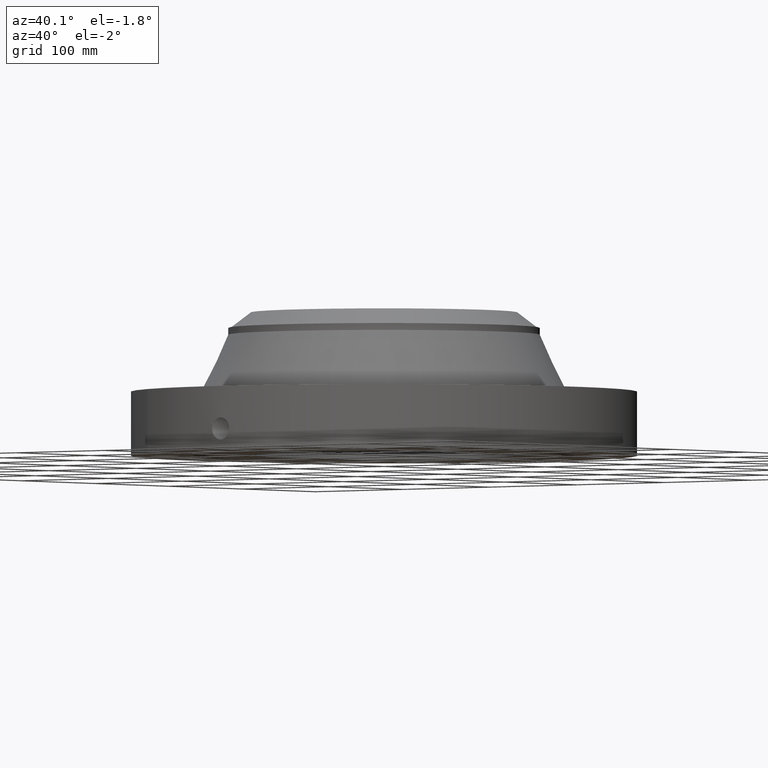
[diagram: clean part render]
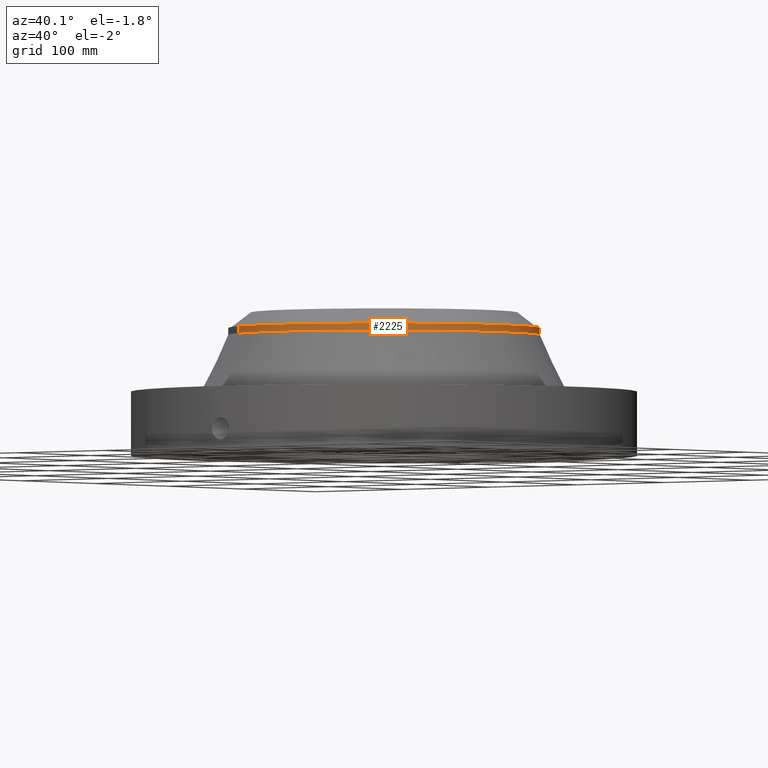
[diagram: same view with one face highlighted and labeled with its STEP entity id]
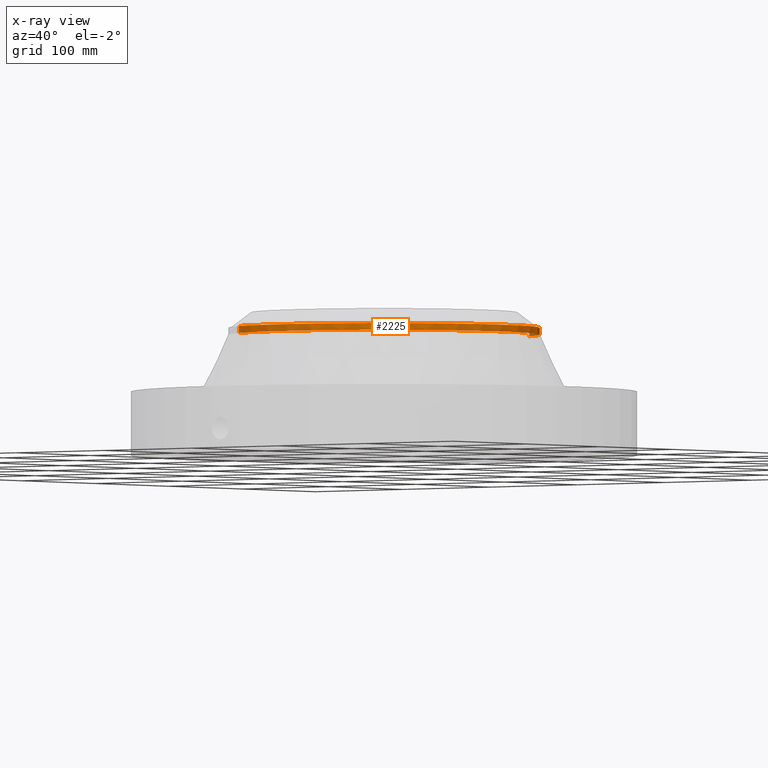
[diagram: x-ray of the same camera — body ghosted, the highlighted face saturated]
A machine part, auxiliary view. The second image highlights one B-rep face of the part: STEP entity #2225.
The next image is the same camera in x-ray: the body ghosted, the highlighted face saturated — about 1% of this face is hidden behind the body in this view.
In plain terms, the highlighted cylindrical surface (partial cylindrical patch) has radius 136.525 mm, axis along (0, 0, -1).
Its self-contained STEP definition (entity closure, byte-faithful):
#1708=AXIS2_PLACEMENT_3D('Circle Axis2P3D',#1706,#1707,$) ;
#1721=AXIS2_PLACEMENT_3D('Circle Axis2P3D',#1719,#1720,$) ;
#2184=AXIS2_PLACEMENT_3D('Cylinder Axis2P3D',#2181,#2182,#2183) ;
#2215=AXIS2_PLACEMENT_3D('Circle Axis2P3D',#2213,#2214,$) ;
#1689=CARTESIAN_POINT('Vertex',(2.57691227001,-4.71700627018,4.40251285656)) ;
#1703=CARTESIAN_POINT('Vertex',(-2.57691227001,-4.71700627018,4.40251285656)) ;
#1706=CARTESIAN_POINT('Axis2P3D Location',(0.,0.,4.40251285656)) ;
#1719=CARTESIAN_POINT('Axis2P3D Location',(0.,0.,4.40251285656)) ;
#1723=CARTESIAN_POINT('Vertex',(2.57691227001,4.71700627018,4.40251285656)) ;
#2181=CARTESIAN_POINT('Axis2P3D Location',(0.,0.,2.46650000001)) ;
#2186=CARTESIAN_POINT('Line Origine',(2.57691227001,4.71700627018,4.28440262034)) ;
#2190=CARTESIAN_POINT('Vertex',(2.57691227001,4.71700627018,4.16629238412)) ;
#2197=CARTESIAN_POINT('Vertex',(-2.57691227001,-4.71700627018,4.16629238412)) ;
#2200=CARTESIAN_POINT('Line Origine',(-2.57691227001,-4.71700627018,4.28440262034)) ;
#2213=CARTESIAN_POINT('Axis2P3D Location',(0.,0.,4.16629238412)) ;
#1707=DIRECTION('Axis2P3D Direction',(0.,0.,-0.0393700787402)) ;
#1720=DIRECTION('Axis2P3D Direction',(0.,0.,-0.0393700787402)) ;
#2182=DIRECTION('Axis2P3D Direction',(0.,0.,-0.0393700787402)) ;
#2183=DIRECTION('Axis2P3D XDirection',(0.0188750212049,0.0345504945626,0.)) ;
#2187=DIRECTION('Vector Direction',(0.,0.,-0.0393700787402)) ;
#2201=DIRECTION('Vector Direction',(0.,0.,-0.0393700787402)) ;
#2214=DIRECTION('Axis2P3D Direction',(0.,0.,-0.0393700787402)) ;
#2188=VECTOR('Line Direction',#2187,0.0393700787402) ;
#2202=VECTOR('Line Direction',#2201,0.0393700787402) ;
#2219=ORIENTED_EDGE('',*,*,#2204,.F.) ;
#2220=ORIENTED_EDGE('',*,*,#2217,.F.) ;
#2221=ORIENTED_EDGE('',*,*,#2192,.T.) ;
#2222=ORIENTED_EDGE('',*,*,#1725,.F.) ;
#2223=ORIENTED_EDGE('',*,*,#1710,.T.) ;
#2225=ADVANCED_FACE('PartBody',(#2224),#2185,.T.) ;
#1709=CIRCLE('generated circle',#1708,5.37500000002) ;
#1722=CIRCLE('generated circle',#1721,5.37500000002) ;
#2216=CIRCLE('generated circle',#2215,5.37500000002) ;
#2185=CYLINDRICAL_SURFACE('generated cylinder',#2184,5.37500000002) ;
#1710=EDGE_CURVE('',#1690,#1704,#1709,.T.) ;
#1725=EDGE_CURVE('',#1690,#1724,#1722,.F.) ;
#2192=EDGE_CURVE('',#2191,#1724,#2189,.F.) ;
#2204=EDGE_CURVE('',#2198,#1704,#2203,.F.) ;
#2217=EDGE_CURVE('',#2191,#2198,#2216,.T.) ;
#2218=EDGE_LOOP('',(#2219,#2220,#2221,#2222,#2223)) ;
#2224=FACE_OUTER_BOUND('',#2218,.T.) ;
#2189=LINE('Line',#2186,#2188) ;
#2203=LINE('Line',#2200,#2202) ;
#1690=VERTEX_POINT('',#1689) ;
#1704=VERTEX_POINT('',#1703) ;
#1724=VERTEX_POINT('',#1723) ;
#2191=VERTEX_POINT('',#2190) ;
#2198=VERTEX_POINT('',#2197) ;